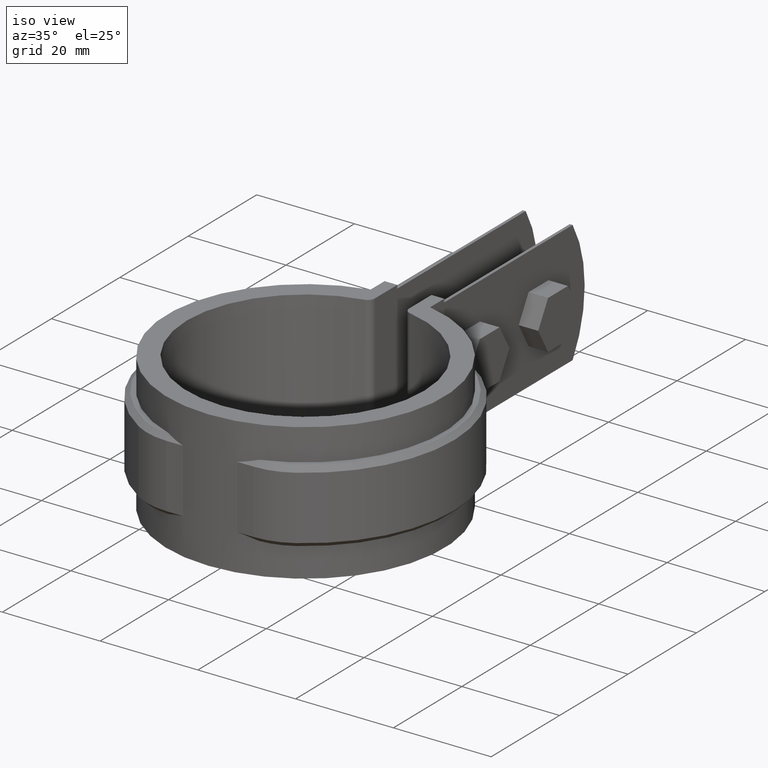
[diagram: clean part render]
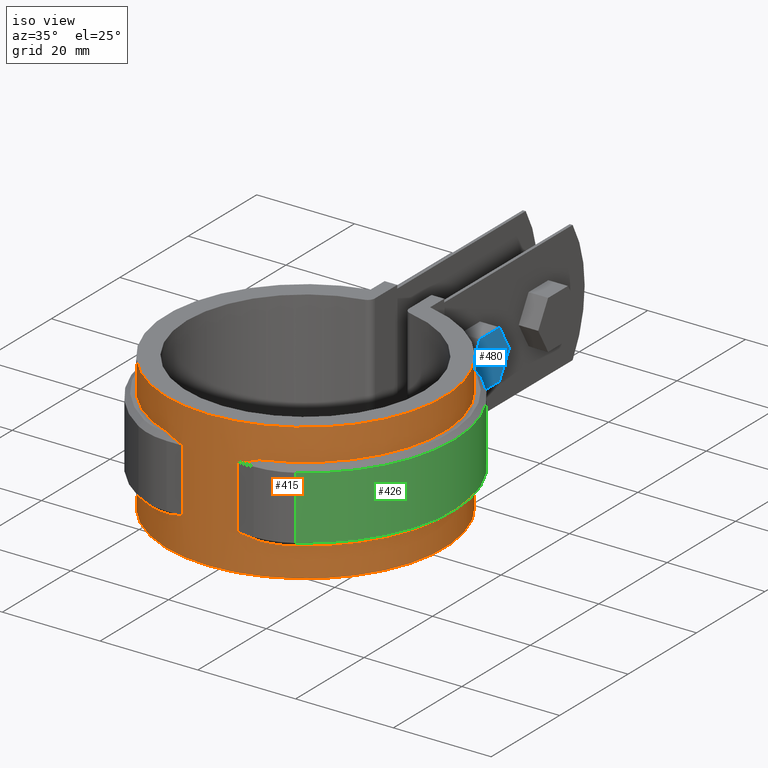
[diagram: same view with three faces highlighted in distinct colors, each labeled with its STEP entity id]
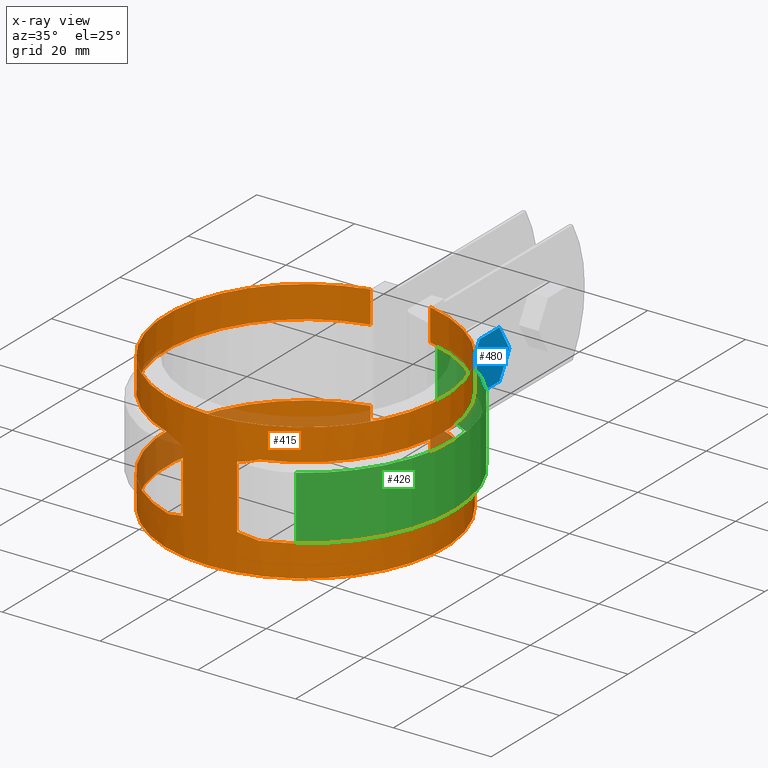
[diagram: x-ray of the same camera — body ghosted, the three highlighted faces saturated]
A machine part, iso view with three faces highlighted in distinct colors.
The next image is the same camera in x-ray (body ghosted, the three faces saturated) — at least one of them is partly hidden behind the body in this view.
Their STEP definitions:

[orange] entity #415 — the highlighted cylindrical surface (partial cylindrical patch) has radius 28.395 mm, axis along (0, 0, -1).
#415 = ADVANCED_FACE( '', ( #745 ), #746, .T. );
#745 = FACE_OUTER_BOUND( '', #1781, .T. );
#746 = CYLINDRICAL_SURFACE( '', #1782, 28.3950000000000 );
#1781 = EDGE_LOOP( '', ( #3906, #3907, #3908, #3909, #3910, #3911, #3912, #3913, #3914, #3915, #3916, #3917, #3918, #3919, #3920, #3921, #3922, #3923, #3924, #3925 ) );
#1782 = AXIS2_PLACEMENT_3D( '', #3926, #3927, #3928 );
#3906 = ORIENTED_EDGE( '', *, *, #5514, .F. );
#3907 = ORIENTED_EDGE( '', *, *, #5515, .T. );
#3908 = ORIENTED_EDGE( '', *, *, #5462, .T. );
#3909 = ORIENTED_EDGE( '', *, *, #5516, .F. );
#3910 = ORIENTED_EDGE( '', *, *, #5517, .T. );
#3911 = ORIENTED_EDGE( '', *, *, #5518, .T. );
#3912 = ORIENTED_EDGE( '', *, *, #5519, .T. );
#3913 = ORIENTED_EDGE( '', *, *, #5520, .F. );
#3914 = ORIENTED_EDGE( '', *, *, #5521, .T. );
#3915 = ORIENTED_EDGE( '', *, *, #5522, .T. );
#3916 = ORIENTED_EDGE( '', *, *, #5523, .F. );
#3917 = ORIENTED_EDGE( '', *, *, #5524, .T. );
#3918 = ORIENTED_EDGE( '', *, *, #5525, .T. );
#3919 = ORIENTED_EDGE( '', *, *, #5526, .T. );
#3920 = ORIENTED_EDGE( '', *, *, #5527, .T. );
#3921 = ORIENTED_EDGE( '', *, *, #5513, .T. );
#3922 = ORIENTED_EDGE( '', *, *, #5528, .T. );
#3923 = ORIENTED_EDGE( '', *, *, #5529, .T. );
#3924 = ORIENTED_EDGE( '', *, *, #5530, .F. );
#3925 = ORIENTED_EDGE( '', *, *, #5531, .F. );
#3926 = CARTESIAN_POINT( '', ( 0.000000000000000, 0.000000000000000, -26.5000000000000 ) );
#3927 = DIRECTION( '', ( 0.000000000000000, 0.000000000000000, -1.00000000000000 ) );
#3928 = DIRECTION( '', ( -1.00000000000000, 6.07153216591882E-017, 0.000000000000000 ) );
#5462 = EDGE_CURVE( '', #6253, #6256, #6258, .T. );
#5513 = EDGE_CURVE( '', #6326, #6332, #6334, .T. );
#5514 = EDGE_CURVE( '', #6335, #6336, #6337, .T. );
#5515 = EDGE_CURVE( '', #6335, #6253, #6338, .F. );
#5516 = EDGE_CURVE( '', #6339, #6256, #6340, .T. );
#5517 = EDGE_CURVE( '', #6339, #6341, #6342, .F. );
#5518 = EDGE_CURVE( '', #6341, #6343, #6344, .T. );
#5519 = EDGE_CURVE( '', #6343, #6345, #6346, .T. );
#5520 = EDGE_CURVE( '', #6347, #6345, #6348, .T. );
#5521 = EDGE_CURVE( '', #6347, #6349, #6350, .T. );
#5522 = EDGE_CURVE( '', #6349, #6351, #6352, .T. );
#5523 = EDGE_CURVE( '', #6353, #6351, #6354, .T. );
#5524 = EDGE_CURVE( '', #6353, #6355, #6356, .F. );
#5525 = EDGE_CURVE( '', #6355, #6357, #6358, .F. );
#5526 = EDGE_CURVE( '', #6357, #6359, #6360, .T. );
#5527 = EDGE_CURVE( '', #6359, #6326, #6361, .T. );
#5528 = EDGE_CURVE( '', #6332, #6362, #6363, .T. );
#5529 = EDGE_CURVE( '', #6362, #6364, #6365, .T. );
#5530 = EDGE_CURVE( '', #6366, #6364, #6367, .T. );
#5531 = EDGE_CURVE( '', #6336, #6366, #6368, .T. );
#6253 = VERTEX_POINT( '', #9294 );
#6256 = VERTEX_POINT( '', #9298 );
#6258 = ELLIPSE( '', #9301, 40.1565941035841, 28.3950000000000 );
#6326 = VERTEX_POINT( '', #9708 );
#6332 = VERTEX_POINT( '', #9716 );
#6334 = B_SPLINE_CURVE_WITH_KNOTS( '', 3, ( #9718, #9719, #9720, #9721 ), .UNSPECIFIED., .F., .F., ( 4, 4 ), ( 0.00706671622431388, 0.00746585166887139 ), .UNSPECIFIED. );
#6335 = VERTEX_POINT( '', #9722 );
#6336 = VERTEX_POINT( '', #9723 );
#6337 = CIRCLE( '', #9724, 28.3950000000000 );
#6338 = B_SPLINE_CURVE_WITH_KNOTS( '', 3, ( #9725, #9726, #9727, #9728 ), .UNSPECIFIED., .F., .F., ( 4, 4 ), ( 0.00706671622431384, 0.00746585166887138 ), .UNSPECIFIED. );
#6339 = VERTEX_POINT( '', #9729 );
#6340 = LINE( '', #9730, #9731 );
#6341 = VERTEX_POINT( '', #9732 );
#6342 = ELLIPSE( '', #9733, 40.1565941035840, 28.3950000000000 );
#6343 = VERTEX_POINT( '', #9734 );
#6344 = B_SPLINE_CURVE_WITH_KNOTS( '', 3, ( #9735, #9736, #9737, #9738 ), .UNSPECIFIED., .F., .F., ( 4, 4 ), ( 0.00706671622431388, 0.00746585166887139 ), .UNSPECIFIED. );
#6345 = VERTEX_POINT( '', #9739 );
#6346 = CIRCLE( '', #9740, 28.3950000000000 );
#6347 = VERTEX_POINT( '', #9741 );
#6348 = LINE( '', #9742, #9743 );
#6349 = VERTEX_POINT( '', #9744 );
#6350 = CIRCLE( '', #9745, 28.3950000000000 );
#6351 = VERTEX_POINT( '', #9746 );
#6352 = LINE( '', #9747, #9748 );
#6353 = VERTEX_POINT( '', #9749 );
#6354 = CIRCLE( '', #9750, 28.3950000000000 );
#6355 = VERTEX_POINT( '', #9751 );
#6356 = B_SPLINE_CURVE_WITH_KNOTS( '', 3, ( #9752, #9753, #9754, #9755 ), .UNSPECIFIED., .F., .F., ( 4, 4 ), ( 0.00706671622431389, 0.00746585166887139 ), .UNSPECIFIED. );
#6357 = VERTEX_POINT( '', #9756 );
#6358 = ELLIPSE( '', #9757, 40.1565941035840, 28.3950000000000 );
#6359 = VERTEX_POINT( '', #9758 );
#6360 = LINE( '', #9759, #9760 );
#6361 = ELLIPSE( '', #9761, 40.1565941035841, 28.3950000000000 );
#6362 = VERTEX_POINT( '', #9762 );
#6363 = CIRCLE( '', #9763, 28.3950000000000 );
#6364 = VERTEX_POINT( '', #9764 );
#6365 = LINE( '', #9765, #9766 );
#6366 = VERTEX_POINT( '', #9767 );
#6367 = CIRCLE( '', #9768, 28.3950000000000 );
#6368 = LINE( '', #9769, #9770 );
#9294 = CARTESIAN_POINT( '', ( -8.88873022427839, -26.9678790415561, -5.11787904155609 ) );
#9298 = CARTESIAN_POINT( '', ( -5.53656256173450, -27.8500000000000, -6.00000000000000 ) );
#9301 = AXIS2_PLACEMENT_3D( '', #10639, #10640, #10641 );
#9708 = CARTESIAN_POINT( '', ( 8.88873022427838, -26.9678790415561, -5.11787904155608 ) );
#9716 = CARTESIAN_POINT( '', ( 9.25408003531866, -26.8447020415559, -5.00000000000000 ) );
#9718 = CARTESIAN_POINT( '', ( 8.88873022427839, -26.9678790415561, -5.11787904155609 ) );
#9719 = CARTESIAN_POINT( '', ( 9.01038261567007, -26.9277818842471, -5.07778188424710 ) );
#9720 = CARTESIAN_POINT( '', ( 9.13216194667496, -26.8867304368913, -5.03847558459405 ) );
#9721 = CARTESIAN_POINT( '', ( 9.25408003531866, -26.8447020415559, -5.00000000000000 ) );
#9722 = CARTESIAN_POINT( '', ( -9.25408003531870, -26.8447020415559, -5.00000000000000 ) );
#9723 = CARTESIAN_POINT( '', ( -6.10000000000003, 27.7320396833699, -5.00000000000000 ) );
#9724 = AXIS2_PLACEMENT_3D( '', #10692, #10693, #10694 );
#9725 = CARTESIAN_POINT( '', ( -8.88873022427838, -26.9678790415561, -5.11787904155609 ) );
#9726 = CARTESIAN_POINT( '', ( -9.01038261567007, -26.9277818842471, -5.07778188424710 ) );
#9727 = CARTESIAN_POINT( '', ( -9.13216194667499, -26.8867304368912, -5.03847558459404 ) );
#9728 = CARTESIAN_POINT( '', ( -9.25408003531869, -26.8447020415559, -4.99999999999999 ) );
#9729 = CARTESIAN_POINT( '', ( -5.53656256173450, -27.8500000000000, -19.0000000000000 ) );
#9730 = CARTESIAN_POINT( '', ( -5.53656256173450, -27.8500000000000, -20.0000000000000 ) );
#9731 = VECTOR( '', #10695, 1000.00000000000 );
#9732 = CARTESIAN_POINT( '', ( -8.88873022427839, -26.9678790415561, -19.8821209584439 ) );
#9733 = AXIS2_PLACEMENT_3D( '', #10696, #10697, #10698 );
#9734 = CARTESIAN_POINT( '', ( -9.25408003531866, -26.8447020415559, -20.0000000000000 ) );
#9735 = CARTESIAN_POINT( '', ( -8.88873022427839, -26.9678790415561, -19.8821209584439 ) );
#9736 = CARTESIAN_POINT( '', ( -9.01038261567007, -26.9277818842471, -19.9222181157529 ) );
#9737 = CARTESIAN_POINT( '', ( -9.13216194667496, -26.8867304368913, -19.9615244154060 ) );
#9738 = CARTESIAN_POINT( '', ( -9.25408003531866, -26.8447020415559, -20.0000000000000 ) );
#9739 = CARTESIAN_POINT( '', ( -6.10000000000003, 27.7320396833699, -20.0000000000000 ) );
#9740 = AXIS2_PLACEMENT_3D( '', #10699, #10700, #10701 );
#9741 = CARTESIAN_POINT( '', ( -6.10000000000002, 27.7320396833698, -26.5000000000000 ) );
#9742 = CARTESIAN_POINT( '', ( -6.10000000000002, 27.7320396833698, -26.5000000000000 ) );
#9743 = VECTOR( '', #10702, 1000.00000000000 );
#9744 = CARTESIAN_POINT( '', ( 6.09999999999998, 27.7320396833699, -26.5000000000000 ) );
#9745 = AXIS2_PLACEMENT_3D( '', #10703, #10704, #10705 );
#9746 = CARTESIAN_POINT( '', ( 6.09999999999998, 27.7320396833699, -20.0000000000000 ) );
#9747 = CARTESIAN_POINT( '', ( 6.09999999999998, 27.7320396833699, -26.5000000000000 ) );
#9748 = VECTOR( '', #10706, 1000.00000000000 );
#9749 = CARTESIAN_POINT( '', ( 9.25408003531866, -26.8447020415559, -20.0000000000000 ) );
#9750 = AXIS2_PLACEMENT_3D( '', #10707, #10708, #10709 );
#9751 = CARTESIAN_POINT( '', ( 8.88873022427839, -26.9678790415561, -19.8821209584439 ) );
#9752 = CARTESIAN_POINT( '', ( 8.88873022427839, -26.9678790415561, -19.8821209584439 ) );
#9753 = CARTESIAN_POINT( '', ( 9.01038261567007, -26.9277818842471, -19.9222181157529 ) );
#9754 = CARTESIAN_POINT( '', ( 9.13216194667496, -26.8867304368913, -19.9615244154060 ) );
#9755 = CARTESIAN_POINT( '', ( 9.25408003531866, -26.8447020415559, -20.0000000000000 ) );
#9756 = CARTESIAN_POINT( '', ( 5.53656256173448, -27.8500000000000, -19.0000000000000 ) );
#9757 = AXIS2_PLACEMENT_3D( '', #10710, #10711, #10712 );
#9758 = CARTESIAN_POINT( '', ( 5.53656256173448, -27.8500000000000, -6.00000000000000 ) );
#9759 = CARTESIAN_POINT( '', ( 5.53656256173448, -27.8500000000000, -20.0000000000000 ) );
#9760 = VECTOR( '', #10713, 1000.00000000000 );
#9761 = AXIS2_PLACEMENT_3D( '', #10714, #10715, #10716 );
#9762 = CARTESIAN_POINT( '', ( 6.09999999999998, 27.7320396833699, -5.00000000000000 ) );
#9763 = AXIS2_PLACEMENT_3D( '', #10717, #10718, #10719 );
#9764 = CARTESIAN_POINT( '', ( 6.09999999999998, 27.7320396833699, 1.50000000000000 ) );
#9765 = CARTESIAN_POINT( '', ( 6.09999999999998, 27.7320396833699, -26.5000000000000 ) );
#9766 = VECTOR( '', #10720, 1000.00000000000 );
#9767 = CARTESIAN_POINT( '', ( -6.10000000000002, 27.7320396833698, 1.50000000000000 ) );
#9768 = AXIS2_PLACEMENT_3D( '', #10721, #10722, #10723 );
#9769 = CARTESIAN_POINT( '', ( -6.10000000000002, 27.7320396833698, -26.5000000000000 ) );
#9770 = VECTOR( '', #10724, 1000.00000000000 );
#10639 = CARTESIAN_POINT( '', ( 0.000000000000000, 0.000000000000000, 21.8500000000000 ) );
#10640 = DIRECTION( '', ( 0.000000000000000, -0.707106781186548, 0.707106781186547 ) );
#10641 = DIRECTION( '', ( 0.000000000000000, 0.707106781186547, 0.707106781186548 ) );
#10692 = CARTESIAN_POINT( '', ( -8.67361737988404E-016, -3.46944695195361E-015, -5.00000000000000 ) );
#10693 = DIRECTION( '', ( 0.000000000000000, 0.000000000000000, -1.00000000000000 ) );
#10694 = DIRECTION( '', ( 1.00000000000000, 5.55111512312578E-017, 0.000000000000000 ) );
#10695 = DIRECTION( '', ( 0.000000000000000, 0.000000000000000, 1.00000000000000 ) );
#10696 = CARTESIAN_POINT( '', ( 0.000000000000000, 0.000000000000000, -46.8500000000000 ) );
#10697 = DIRECTION( '', ( 0.000000000000000, 0.707106781186548, 0.707106781186548 ) );
#10698 = DIRECTION( '', ( 0.000000000000000, -0.707106781186548, 0.707106781186548 ) );
#10699 = CARTESIAN_POINT( '', ( -8.67361737988404E-016, -3.46944695195361E-015, -20.0000000000000 ) );
#10700 = DIRECTION( '', ( 0.000000000000000, 0.000000000000000, -1.00000000000000 ) );
#10701 = DIRECTION( '', ( 1.00000000000000, 5.55111512312578E-017, 0.000000000000000 ) );
#10702 = DIRECTION( '', ( 0.000000000000000, 0.000000000000000, 1.00000000000000 ) );
#10703 = CARTESIAN_POINT( '', ( 0.000000000000000, 0.000000000000000, -26.5000000000000 ) );
#10704 = DIRECTION( '', ( 0.000000000000000, 0.000000000000000, 1.00000000000000 ) );
#10705 = DIRECTION( '', ( 1.00000000000000, -6.07153216591882E-017, 0.000000000000000 ) );
#10706 = DIRECTION( '', ( 0.000000000000000, 0.000000000000000, 1.00000000000000 ) );
#10707 = CARTESIAN_POINT( '', ( -8.67361737988404E-016, -3.46944695195361E-015, -20.0000000000000 ) );
#10708 = DIRECTION( '', ( 0.000000000000000, 0.000000000000000, 1.00000000000000 ) );
#10709 = DIRECTION( '', ( 1.00000000000000, 5.55111512312578E-017, 0.000000000000000 ) );
#10710 = CARTESIAN_POINT( '', ( 0.000000000000000, 0.000000000000000, -46.8500000000000 ) );
#10711 = DIRECTION( '', ( 0.000000000000000, 0.707106781186548, 0.707106781186548 ) );
#10712 = DIRECTION( '', ( 0.000000000000000, -0.707106781186548, 0.707106781186548 ) );
#10713 = DIRECTION( '', ( 0.000000000000000, 0.000000000000000, 1.00000000000000 ) );
#10714 = CARTESIAN_POINT( '', ( 0.000000000000000, 0.000000000000000, 21.8500000000000 ) );
#10715 = DIRECTION( '', ( 0.000000000000000, -0.707106781186548, 0.707106781186547 ) );
#10716 = DIRECTION( '', ( 0.000000000000000, 0.707106781186547, 0.707106781186548 ) );
#10717 = CARTESIAN_POINT( '', ( -8.67361737988404E-016, -3.46944695195361E-015, -5.00000000000000 ) );
#10718 = DIRECTION( '', ( 0.000000000000000, 0.000000000000000, 1.00000000000000 ) );
#10719 = DIRECTION( '', ( 1.00000000000000, 5.55111512312578E-017, 0.000000000000000 ) );
#10720 = DIRECTION( '', ( 0.000000000000000, 0.000000000000000, 1.00000000000000 ) );
#10721 = CARTESIAN_POINT( '', ( 0.000000000000000, 0.000000000000000, 1.50000000000000 ) );
#10722 = DIRECTION( '', ( 0.000000000000000, 0.000000000000000, 1.00000000000000 ) );
#10723 = DIRECTION( '', ( 1.00000000000000, -6.07153216591882E-017, 0.000000000000000 ) );
#10724 = DIRECTION( '', ( 0.000000000000000, 0.000000000000000, 1.00000000000000 ) );

[blue] entity #480 — the highlighted planar face has unit normal (-1, 0, 0).
#480 = ADVANCED_FACE( '', ( #882 ), #883, .F. );
#882 = FACE_OUTER_BOUND( '', #1972, .T. );
#883 = PLANE( '', #1973 );
#1972 = EDGE_LOOP( '', ( #4785, #4786, #4787, #4788, #4789, #4790 ) );
#1973 = AXIS2_PLACEMENT_3D( '', #4791, #4792, #4793 );
#4785 = ORIENTED_EDGE( '', *, *, #5629, .T. );
#4786 = ORIENTED_EDGE( '', *, *, #5632, .T. );
#4787 = ORIENTED_EDGE( '', *, *, #5635, .T. );
#4788 = ORIENTED_EDGE( '', *, *, #5636, .T. );
#4789 = ORIENTED_EDGE( '', *, *, #5637, .T. );
#4790 = ORIENTED_EDGE( '', *, *, #5638, .T. );
#4791 = CARTESIAN_POINT( '', ( 9.10000000000000, 32.1442731177631, -17.5000000000000 ) );
#4792 = DIRECTION( '', ( -1.00000000000000, 0.000000000000000, 0.000000000000000 ) );
#4793 = DIRECTION( '', ( 0.000000000000000, 0.000000000000000, 1.00000000000000 ) );
#5629 = EDGE_CURVE( '', #6518, #6516, #6519, .T. );
#5632 = EDGE_CURVE( '', #6516, #6521, #6523, .T. );
#5635 = EDGE_CURVE( '', #6521, #6528, #6529, .T. );
#5636 = EDGE_CURVE( '', #6528, #6530, #6531, .T. );
#5637 = EDGE_CURVE( '', #6530, #6532, #6533, .T. );
#5638 = EDGE_CURVE( '', #6532, #6518, #6534, .T. );
#6516 = VERTEX_POINT( '', #10020 );
#6518 = VERTEX_POINT( '', #10023 );
#6519 = LINE( '', #10024, #10025 );
#6521 = VERTEX_POINT( '', #10028 );
#6523 = LINE( '', #10031, #10032 );
#6528 = VERTEX_POINT( '', #10037 );
#6529 = LINE( '', #10038, #10039 );
#6530 = VERTEX_POINT( '', #10040 );
#6531 = LINE( '', #10041, #10042 );
#6532 = VERTEX_POINT( '', #10043 );
#6533 = LINE( '', #10044, #10045 );
#6534 = LINE( '', #10046, #10047 );
#10020 = CARTESIAN_POINT( '', ( 9.10000000000000, 43.6912785015556, -17.5000000000000 ) );
#10023 = CARTESIAN_POINT( '', ( 9.10000000000000, 37.9177758096594, -17.5000000000000 ) );
#10024 = CARTESIAN_POINT( '', ( 9.10000000000000, 37.9177758096594, -17.5000000000000 ) );
#10025 = VECTOR( '', #10863, 1000.00000000000 );
#10028 = CARTESIAN_POINT( '', ( 9.10000000000000, 46.5780298475038, -12.5000000000000 ) );
#10031 = CARTESIAN_POINT( '', ( 9.10000000000000, 43.6912785015556, -17.5000000000000 ) );
#10032 = VECTOR( '', #10866, 1000.00000000000 );
#10037 = CARTESIAN_POINT( '', ( 9.10000000000000, 43.6912785015556, -7.50000000000000 ) );
#10038 = CARTESIAN_POINT( '', ( 9.10000000000000, 46.5780298475038, -12.5000000000000 ) );
#10039 = VECTOR( '', #10873, 1000.00000000000 );
#10040 = CARTESIAN_POINT( '', ( 9.10000000000000, 37.9177758096594, -7.50000000000000 ) );
#10041 = CARTESIAN_POINT( '', ( 9.10000000000000, 43.6912785015556, -7.50000000000000 ) );
#10042 = VECTOR( '', #10874, 1000.00000000000 );
#10043 = CARTESIAN_POINT( '', ( 9.10000000000000, 35.0310244637112, -12.5000000000000 ) );
#10044 = CARTESIAN_POINT( '', ( 9.10000000000000, 37.9177758096594, -7.50000000000000 ) );
#10045 = VECTOR( '', #10875, 1000.00000000000 );
#10046 = CARTESIAN_POINT( '', ( 9.10000000000000, 35.0310244637112, -12.5000000000000 ) );
#10047 = VECTOR( '', #10876, 1000.00000000000 );
#10863 = DIRECTION( '', ( 0.000000000000000, 1.00000000000000, -3.00462919747431E-016 ) );
#10866 = DIRECTION( '', ( 0.000000000000000, 0.500000000000000, 0.866025403784439 ) );
#10873 = DIRECTION( '', ( 0.000000000000000, -0.500000000000000, 0.866025403784439 ) );
#10874 = DIRECTION( '', ( 0.000000000000000, -1.00000000000000, 0.000000000000000 ) );
#10875 = DIRECTION( '', ( 0.000000000000000, -0.500000000000000, -0.866025403784439 ) );
#10876 = DIRECTION( '', ( 0.000000000000000, 0.500000000000000, -0.866025403784439 ) );

[green] entity #426 — the highlighted cylindrical surface (partial cylindrical patch) has radius 30.395 mm, axis along (0, 0, -1).
#426 = ADVANCED_FACE( '', ( #767 ), #768, .T. );
#767 = FACE_OUTER_BOUND( '', #1803, .T. );
#768 = CYLINDRICAL_SURFACE( '', #1804, 30.3950000000000 );
#1803 = EDGE_LOOP( '', ( #4010, #4011, #4012, #4013 ) );
#1804 = AXIS2_PLACEMENT_3D( '', #4014, #4015, #4016 );
#4010 = ORIENTED_EDGE( '', *, *, #5541, .T. );
#4011 = ORIENTED_EDGE( '', *, *, #5563, .T. );
#4012 = ORIENTED_EDGE( '', *, *, #5564, .F. );
#4013 = ORIENTED_EDGE( '', *, *, #5560, .T. );
#4014 = CARTESIAN_POINT( '', ( -8.67361737988404E-016, -3.46944695195361E-015, -20.0000000000000 ) );
#4015 = DIRECTION( '', ( 0.000000000000000, 0.000000000000000, -1.00000000000000 ) );
#4016 = DIRECTION( '', ( 0.194983714095246, 0.980806480014087, 0.000000000000000 ) );
#5541 = EDGE_CURVE( '', #6383, #6384, #6385, .T. );
#5560 = EDGE_CURVE( '', #6409, #6383, #6413, .T. );
#5563 = EDGE_CURVE( '', #6384, #6328, #6416, .F. );
#5564 = EDGE_CURVE( '', #6409, #6328, #6417, .T. );
#6328 = VERTEX_POINT( '', #9711 );
#6383 = VERTEX_POINT( '', #9798 );
#6384 = VERTEX_POINT( '', #9799 );
#6385 = LINE( '', #9800, #9801 );
#6409 = VERTEX_POINT( '', #9840 );
#6413 = CIRCLE( '', #9845, 30.3950000000000 );
#6416 = CIRCLE( '', #9849, 30.3950000000000 );
#6417 = LINE( '', #9850, #9851 );
#9711 = CARTESIAN_POINT( '', ( 16.0865111739769, -25.7891485561179, -6.00000000000000 ) );
#9798 = CARTESIAN_POINT( '', ( 6.09999999999998, 29.7766019720183, -19.0000000000000 ) );
#9799 = CARTESIAN_POINT( '', ( 6.09999999999998, 29.7766019720183, -6.00000000000000 ) );
#9800 = CARTESIAN_POINT( '', ( 6.09999999999998, 29.7766019720183, -20.0000000000000 ) );
#9801 = VECTOR( '', #10732, 1000.00000000000 );
#9840 = CARTESIAN_POINT( '', ( 16.0865111739769, -25.7891485561179, -19.0000000000000 ) );
#9845 = AXIS2_PLACEMENT_3D( '', #10761, #10762, #10763 );
#9849 = AXIS2_PLACEMENT_3D( '', #10768, #10769, #10770 );
#9850 = CARTESIAN_POINT( '', ( 16.0865111739769, -25.7891485561179, -20.0000000000000 ) );
#9851 = VECTOR( '', #10771, 1000.00000000000 );
#10732 = DIRECTION( '', ( 0.000000000000000, 0.000000000000000, 1.00000000000000 ) );
#10761 = CARTESIAN_POINT( '', ( -8.67361737988404E-016, -3.46944695195361E-015, -19.0000000000000 ) );
#10762 = DIRECTION( '', ( 0.000000000000000, 0.000000000000000, 1.00000000000000 ) );
#10763 = DIRECTION( '', ( 1.00000000000000, 0.000000000000000, 0.000000000000000 ) );
#10768 = CARTESIAN_POINT( '', ( -8.67361737988404E-016, -3.46944695195361E-015, -6.00000000000000 ) );
#10769 = DIRECTION( '', ( 0.000000000000000, 0.000000000000000, 1.00000000000000 ) );
#10770 = DIRECTION( '', ( 1.00000000000000, 0.000000000000000, 0.000000000000000 ) );
#10771 = DIRECTION( '', ( 0.000000000000000, 0.000000000000000, 1.00000000000000 ) );